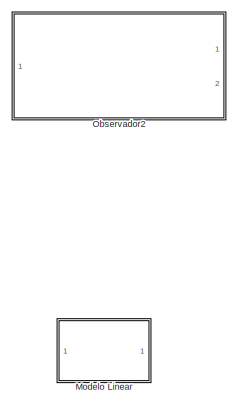
[diagram: root canvas - part 1/13, top right region]
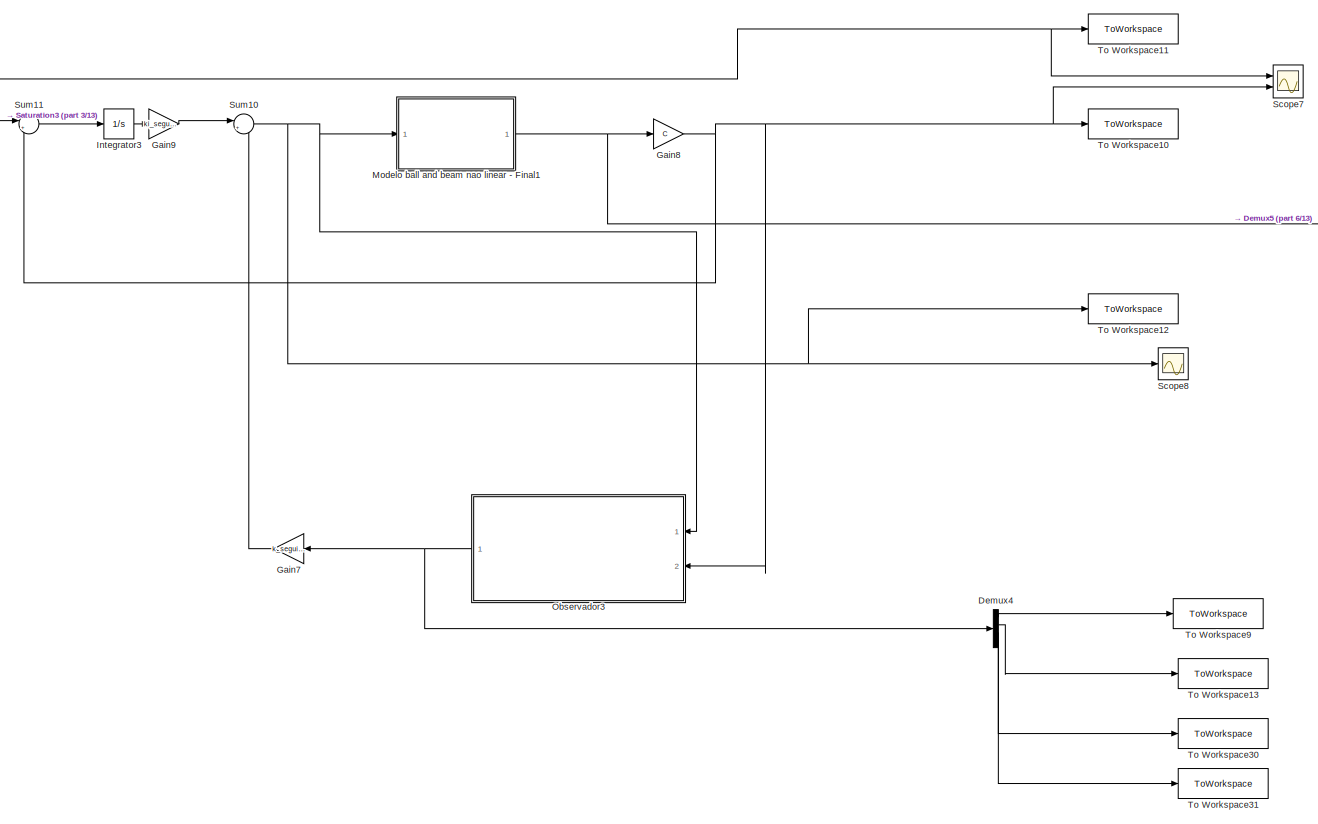
[diagram: root canvas - part 2/13, top center region]
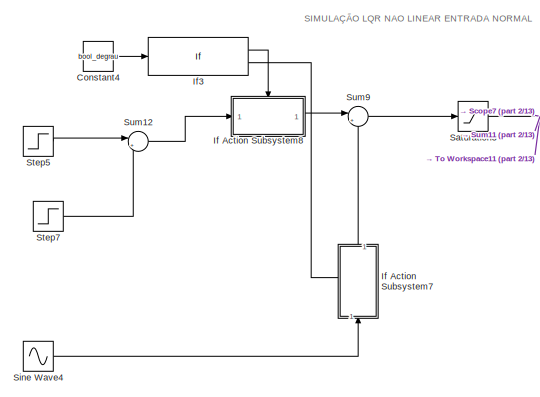
[diagram: root canvas - part 3/13, top center region]
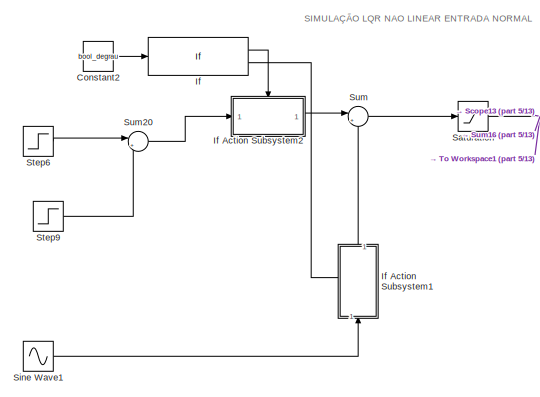
[diagram: root canvas - part 4/13, top left region]
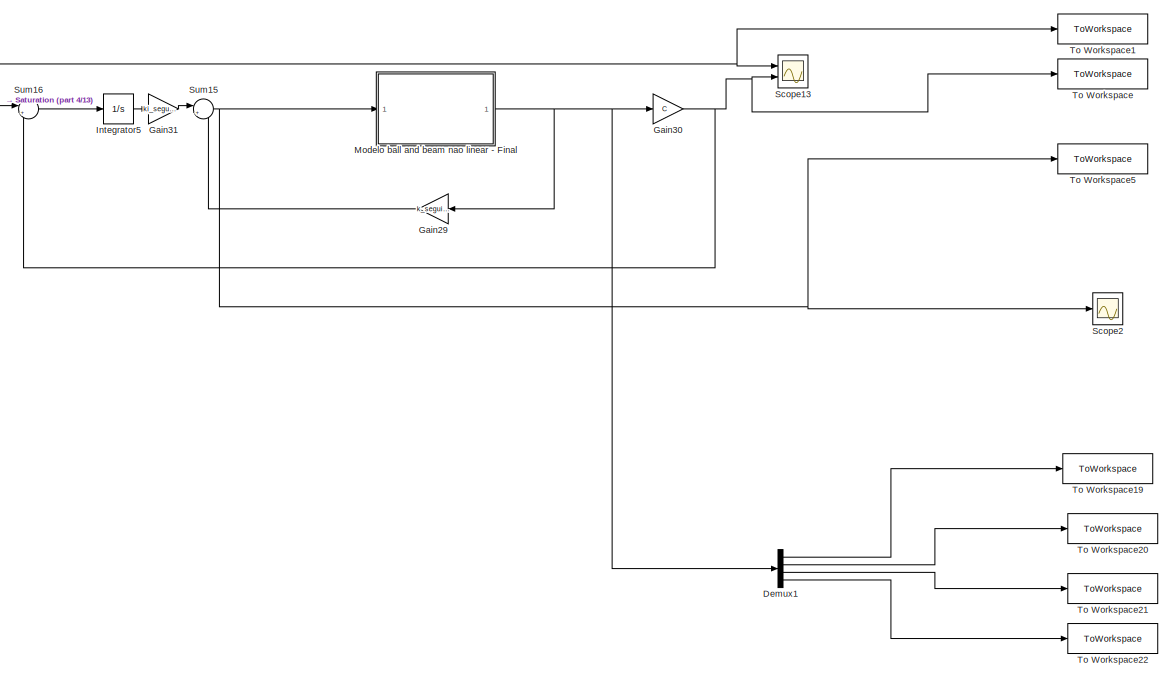
[diagram: root canvas - part 5/13, top left region]
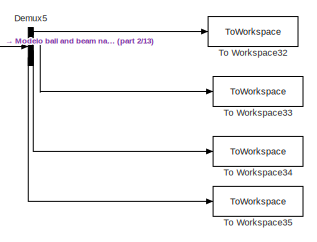
[diagram: root canvas - part 6/13, top right region]
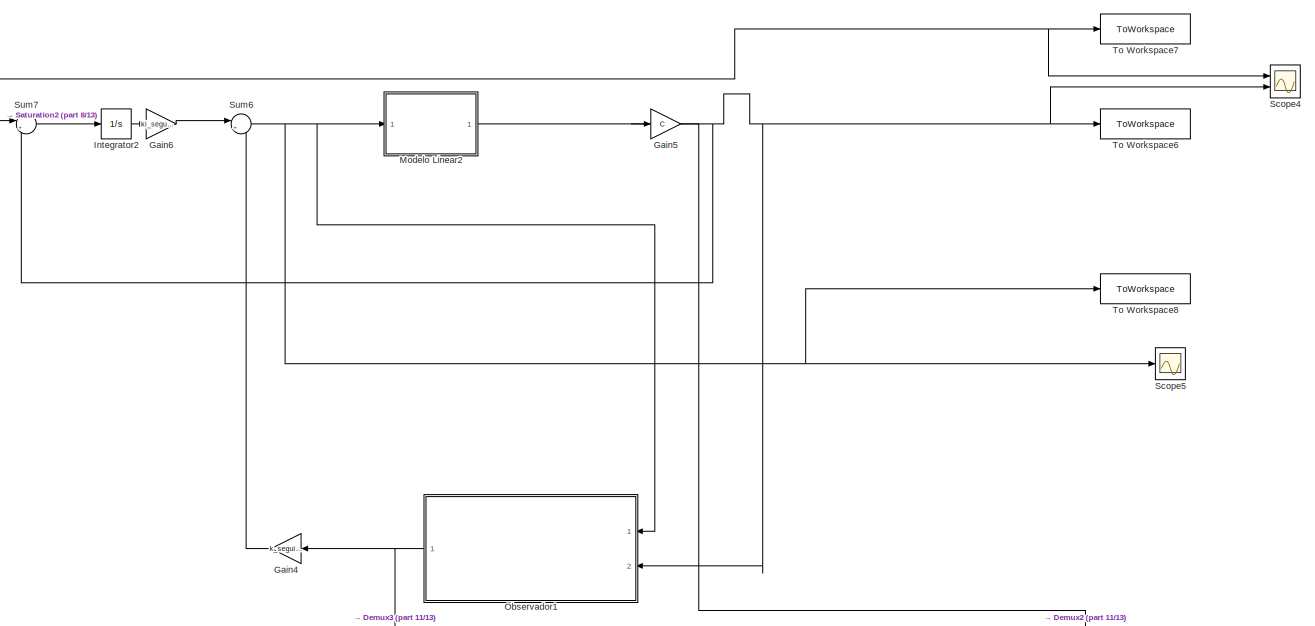
[diagram: root canvas - part 7/13, central region]
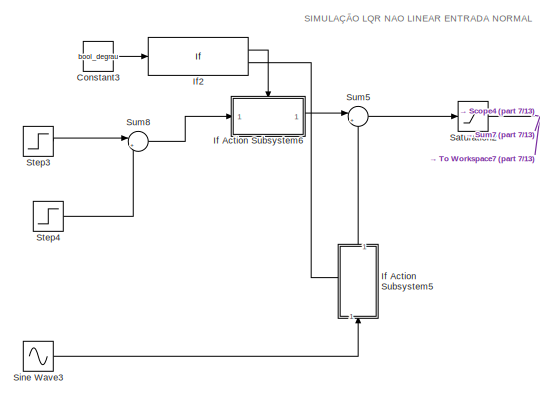
[diagram: root canvas - part 8/13, central region]
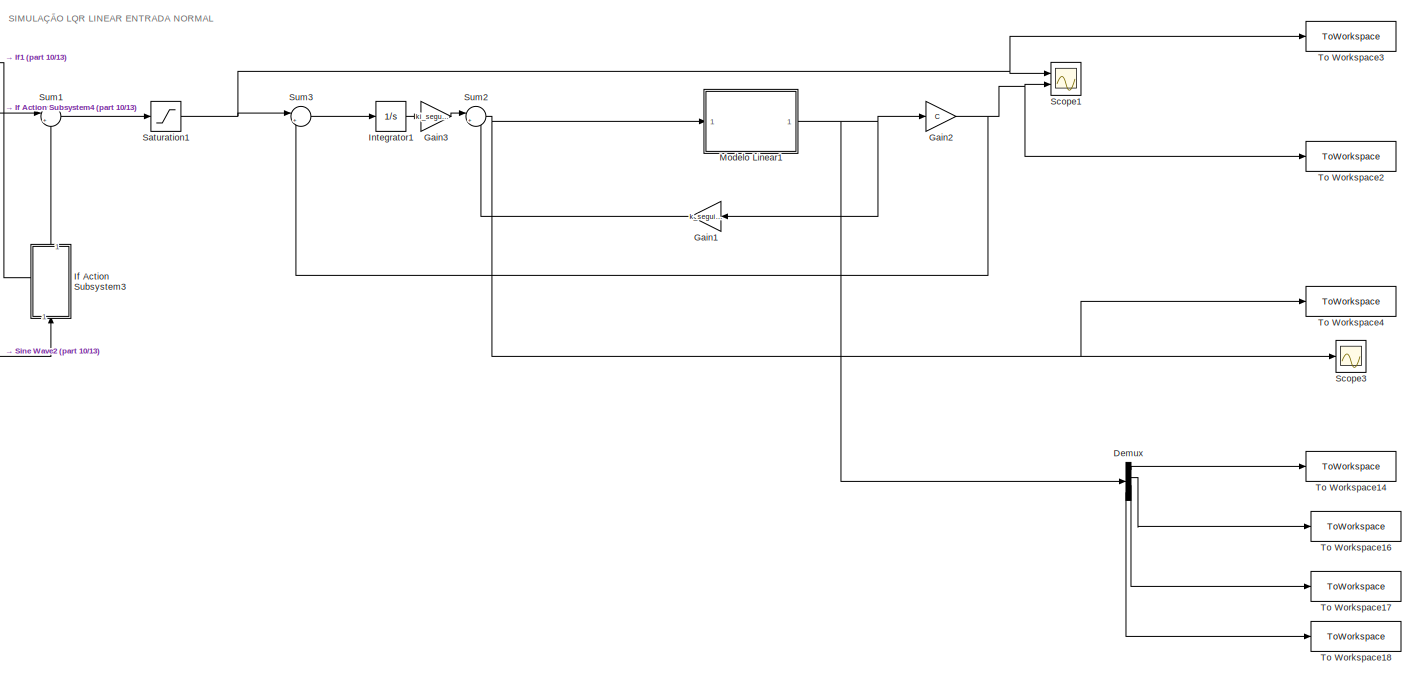
[diagram: root canvas - part 9/13, middle left region]
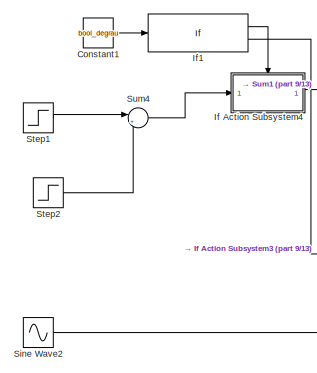
[diagram: root canvas - part 10/13, middle left region]
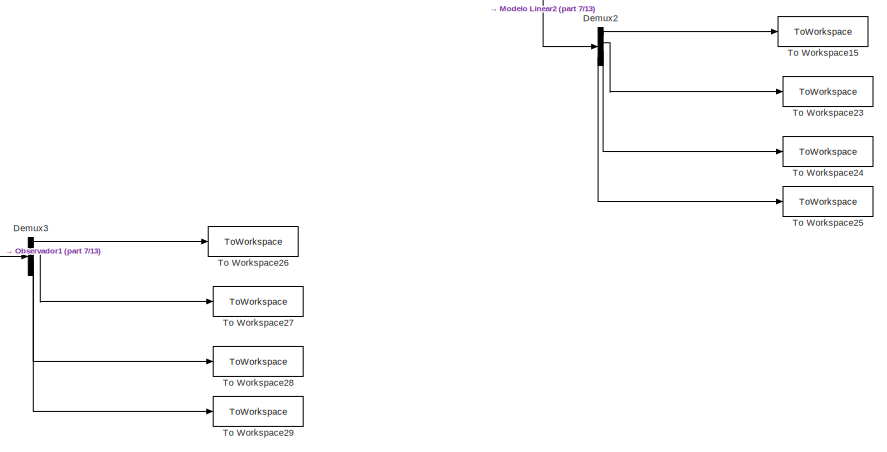
[diagram: root canvas - part 11/13, bottom center region]
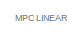
[diagram: root canvas - part 12/13, bottom left region]
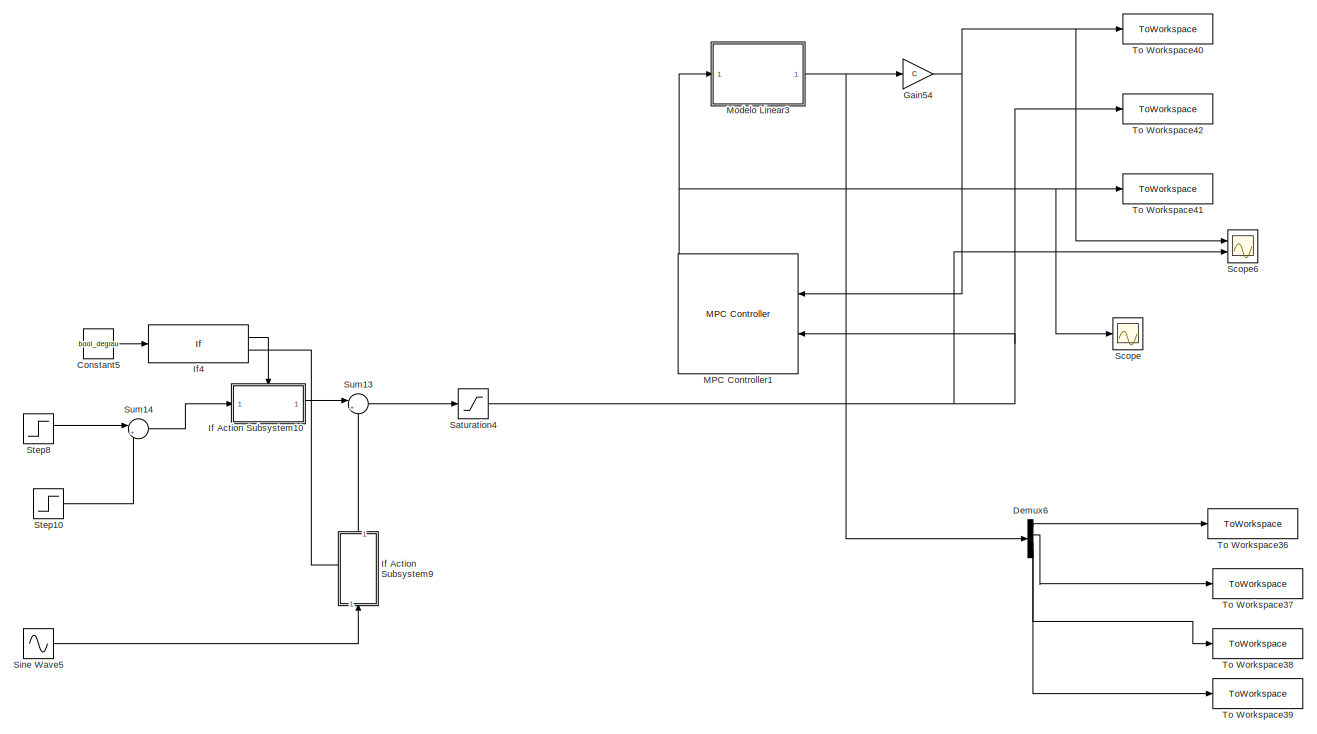
[diagram: root canvas - part 13/13, bottom left region]
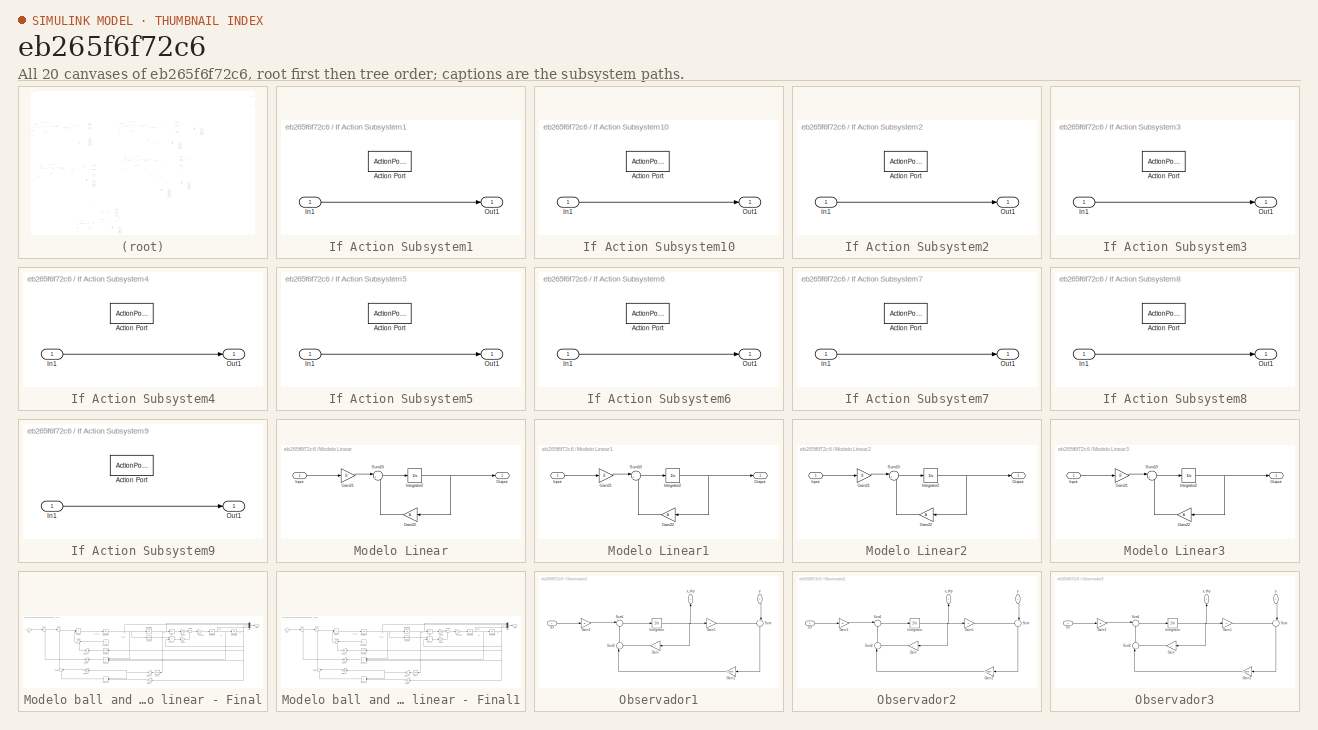
[diagram: thumbnail index - all 20 canvases of the model, root first then tree order]
MODEL slx_eb265f6f72c6
KIND model
CONFIG AbsTol = auto
CONFIG EnableMultiTasking = off
CONFIG FixedStep = auto
CONFIG MaxStep = auto
CONFIG MinStep = auto
CONFIG RelTol = 1e-3
CONFIG SampleTimeConstraint = Unconstrained
CONFIG SolverName = VariableStepAuto
CONFIG StartTime = 0
CONFIG StopTime = 200
BLOCK [Constant] Constant1
  Value = bool_degrau
BLOCK [Constant] Constant2
  Value = bool_degrau
BLOCK [Constant] Constant3
  Value = bool_degrau
BLOCK [Constant] Constant4
  Value = bool_degrau
BLOCK [Constant] Constant5
  Value = bool_degrau
BLOCK [Demux] Demux
  Ports = [1, 4]
BLOCK [Demux] Demux1
  Ports = [1, 4]
BLOCK [Demux] Demux2
  Ports = [1, 4]
BLOCK [Demux] Demux3
  Ports = [1, 4]
BLOCK [Demux] Demux4
  Ports = [1, 4]
BLOCK [Demux] Demux5
  Ports = [1, 4]
BLOCK [Demux] Demux6
  Ports = [1, 4]
BLOCK [Gain] Gain1
  Gain = k_seguimento_lqr
  Multiplication = Matrix(K*u)
  NameLocation = top
BLOCK [Gain] Gain2
  Gain = C
  Multiplication = Matrix(K*u)
BLOCK [Gain] Gain29
  Gain = k_seguimento
  Multiplication = Matrix(K*u)
  NameLocation = top
BLOCK [Gain] Gain3
  Gain = ki_seguimento_lqr
BLOCK [Gain] Gain30
  Gain = C
  Multiplication = Matrix(K*u)
BLOCK [Gain] Gain31
  Gain = ki_seguimento
BLOCK [Gain] Gain4
  Gain = k_seguimento_lqr
  Multiplication = Matrix(K*u)
  NameLocation = top
BLOCK [Gain] Gain5
  Gain = C
  Multiplication = Matrix(K*u)
BLOCK [Gain] Gain54
  Gain = C
  Multiplication = Matrix(K*u)
BLOCK [Gain] Gain6
  Gain = ki_seguimento_lqr
BLOCK [Gain] Gain7
  Gain = k_seguimento
  Multiplication = Matrix(K*u)
  NameLocation = top
BLOCK [Gain] Gain8
  Gain = C
  Multiplication = Matrix(K*u)
BLOCK [Gain] Gain9
  Gain = ki_seguimento
BLOCK [If] If
  IfExpression = u1 == 1
  Ports = [1, 2]
BLOCK [SubSystem] If Action Subsystem1
  NameLocation = right
  Ports = [1, 1, 0, 0, 0, 0, 0, 1]
  RequestExecContextInheritance = off
  TreatAsAtomicUnit = on
BLOCK [ActionPort] If Action Subsystem1/Action Port
  ActionPortLabel = else
BLOCK [Inport] If Action Subsystem1/In1
BLOCK [Outport] If Action Subsystem1/Out1
BLOCK [SubSystem] If Action Subsystem10
  Ports = [1, 1, 0, 0, 0, 0, 0, 1]
  RequestExecContextInheritance = off
  TreatAsAtomicUnit = on
BLOCK [ActionPort] If Action Subsystem10/Action Port
  ActionPortLabel = if(u1 == 1)
BLOCK [Inport] If Action Subsystem10/In1
BLOCK [Outport] If Action Subsystem10/Out1
BLOCK [SubSystem] If Action Subsystem2
  Ports = [1, 1, 0, 0, 0, 0, 0, 1]
  RequestExecContextInheritance = off
  TreatAsAtomicUnit = on
BLOCK [ActionPort] If Action Subsystem2/Action Port
  ActionPortLabel = if(u1 == 1)
BLOCK [Inport] If Action Subsystem2/In1
BLOCK [Outport] If Action Subsystem2/Out1
BLOCK [SubSystem] If Action Subsystem3
  NameLocation = right
  Ports = [1, 1, 0, 0, 0, 0, 0, 1]
  RequestExecContextInheritance = off
  TreatAsAtomicUnit = on
BLOCK [ActionPort] If Action Subsystem3/Action Port
  ActionPortLabel = else
BLOCK [Inport] If Action Subsystem3/In1
BLOCK [Outport] If Action Subsystem3/Out1
BLOCK [SubSystem] If Action Subsystem4
  Ports = [1, 1, 0, 0, 0, 0, 0, 1]
  RequestExecContextInheritance = off
  TreatAsAtomicUnit = on
BLOCK [ActionPort] If Action Subsystem4/Action Port
  ActionPortLabel = if(u1 == 1)
BLOCK [Inport] If Action Subsystem4/In1
BLOCK [Outport] If Action Subsystem4/Out1
BLOCK [SubSystem] If Action Subsystem5
  NameLocation = right
  Ports = [1, 1, 0, 0, 0, 0, 0, 1]
  RequestExecContextInheritance = off
  TreatAsAtomicUnit = on
BLOCK [ActionPort] If Action Subsystem5/Action Port
  ActionPortLabel = else
BLOCK [Inport] If Action Subsystem5/In1
BLOCK [Outport] If Action Subsystem5/Out1
BLOCK [SubSystem] If Action Subsystem6
  Ports = [1, 1, 0, 0, 0, 0, 0, 1]
  RequestExecContextInheritance = off
  TreatAsAtomicUnit = on
BLOCK [ActionPort] If Action Subsystem6/Action Port
  ActionPortLabel = if(u1 == 1)
BLOCK [Inport] If Action Subsystem6/In1
BLOCK [Outport] If Action Subsystem6/Out1
BLOCK [SubSystem] If Action Subsystem7
  NameLocation = right
  Ports = [1, 1, 0, 0, 0, 0, 0, 1]
  RequestExecContextInheritance = off
  TreatAsAtomicUnit = on
BLOCK [ActionPort] If Action Subsystem7/Action Port
  ActionPortLabel = else
BLOCK [Inport] If Action Subsystem7/In1
BLOCK [Outport] If Action Subsystem7/Out1
BLOCK [SubSystem] If Action Subsystem8
  Ports = [1, 1, 0, 0, 0, 0, 0, 1]
  RequestExecContextInheritance = off
  TreatAsAtomicUnit = on
BLOCK [ActionPort] If Action Subsystem8/Action Port
  ActionPortLabel = if(u1 == 1)
BLOCK [Inport] If Action Subsystem8/In1
BLOCK [Outport] If Action Subsystem8/Out1
BLOCK [SubSystem] If Action Subsystem9
  NameLocation = right
  Ports = [1, 1, 0, 0, 0, 0, 0, 1]
  RequestExecContextInheritance = off
  TreatAsAtomicUnit = on
BLOCK [ActionPort] If Action Subsystem9/Action Port
  ActionPortLabel = else
BLOCK [Inport] If Action Subsystem9/In1
BLOCK [Outport] If Action Subsystem9/Out1
BLOCK [If] If1
  IfExpression = u1 == 1
  Ports = [1, 2]
BLOCK [If] If2
  IfExpression = u1 == 1
  Ports = [1, 2]
BLOCK [If] If3
  IfExpression = u1 == 1
  Ports = [1, 2]
BLOCK [If] If4
  IfExpression = u1 == 1
  Ports = [1, 2]
BLOCK [Integrator] Integrator1
  Ports = [1, 1]
BLOCK [Integrator] Integrator2
  Ports = [1, 1]
BLOCK [Integrator] Integrator3
  Ports = [1, 1]
BLOCK [Integrator] Integrator5
  Ports = [1, 1]
BLOCK [Reference] MPC Controller1  REF=mpclib/MPC Controller  (lib defined in mdl_ae329e0e0455)
  NameLocation = top
  Ports = [2, 1]
  SCDEnableBlockLinearizationSpecification = on
  SourceBlock = mpclib/MPC Controller
  SourceProductBaseCode = MP
  SourceType = MPC
BLOCK [SubSystem] Modelo Linear
  Ports = [1, 1]
  RequestExecContextInheritance = off
BLOCK [Gain] Modelo Linear/Gain21
  Gain = B
  Multiplication = Matrix(K*u)
BLOCK [Gain] Modelo Linear/Gain22
  Gain = A
  Multiplication = Matrix(K*u)
  NameLocation = top
BLOCK [Inport] Modelo Linear/Input
BLOCK [Integrator] Modelo Linear/Integrator2
  Ports = [1, 1]
BLOCK [Outport] Modelo Linear/Output
BLOCK [Sum] Modelo Linear/Sum10
  Inputs = |++
  Ports = [2, 1]
BLOCK [SubSystem] Modelo Linear1
  Ports = [1, 1]
  RequestExecContextInheritance = off
BLOCK [Gain] Modelo Linear1/Gain21
  Gain = B
  Multiplication = Matrix(K*u)
BLOCK [Gain] Modelo Linear1/Gain22
  Gain = A
  Multiplication = Matrix(K*u)
  NameLocation = top
BLOCK [Inport] Modelo Linear1/Input
BLOCK [Integrator] Modelo Linear1/Integrator2
  Ports = [1, 1]
BLOCK [Outport] Modelo Linear1/Output
BLOCK [Sum] Modelo Linear1/Sum10
  Inputs = |++
  Ports = [2, 1]
BLOCK [SubSystem] Modelo Linear2
  Ports = [1, 1]
  RequestExecContextInheritance = off
BLOCK [Gain] Modelo Linear2/Gain21
  Gain = B
  Multiplication = Matrix(K*u)
BLOCK [Gain] Modelo Linear2/Gain22
  Gain = A
  Multiplication = Matrix(K*u)
  NameLocation = top
BLOCK [Inport] Modelo Linear2/Input
BLOCK [Integrator] Modelo Linear2/Integrator2
  Ports = [1, 1]
BLOCK [Outport] Modelo Linear2/Output
BLOCK [Sum] Modelo Linear2/Sum10
  Inputs = |++
  Ports = [2, 1]
BLOCK [SubSystem] Modelo Linear3
  Ports = [1, 1]
  RequestExecContextInheritance = off
BLOCK [Gain] Modelo Linear3/Gain21
  Gain = B
  Multiplication = Matrix(K*u)
BLOCK [Gain] Modelo Linear3/Gain22
  Gain = A
  Multiplication = Matrix(K*u)
  NameLocation = top
BLOCK [Inport] Modelo Linear3/Input
BLOCK [Integrator] Modelo Linear3/Integrator2
  Ports = [1, 1]
BLOCK [Outport] Modelo Linear3/Output
BLOCK [Sum] Modelo Linear3/Sum10
  Inputs = |++
  Ports = [2, 1]
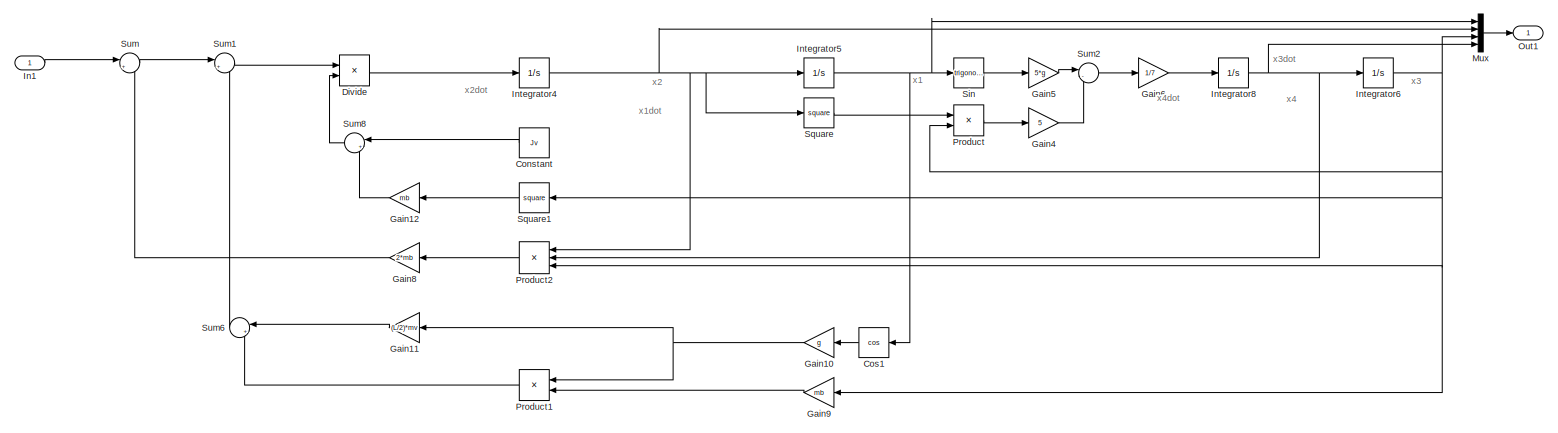
[diagram: Modelo ball and beam nao linear - Final - part 1/1, most of the canvas]
BLOCK [SubSystem] Modelo ball and beam nao linear - Final
  Ports = [1, 1]
  RequestExecContextInheritance = off
BLOCK [Constant] Modelo ball and beam nao linear - Final/Constant
  NameLocation = top
  Value = Jv
BLOCK [Trigonometry] Modelo ball and beam nao linear - Final/Cos1
  NameLocation = top
  Operator = cos
  Ports = [1, 1]
BLOCK [Product] Modelo ball and beam nao linear - Final/Divide
  Inputs = */
  Ports = [2, 1]
BLOCK [Gain] Modelo ball and beam nao linear - Final/Gain10
  Gain = g
  NameLocation = top
BLOCK [Gain] Modelo ball and beam nao linear - Final/Gain11
  Gain = (L/2)*mv
  NameLocation = top
BLOCK [Gain] Modelo ball and beam nao linear - Final/Gain12
  Gain = mb
  NameLocation = top
BLOCK [Gain] Modelo ball and beam nao linear - Final/Gain4
  Gain = 5
BLOCK [Gain] Modelo ball and beam nao linear - Final/Gain5
  Gain = 5*g
BLOCK [Gain] Modelo ball and beam nao linear - Final/Gain6
  Gain = 1/7
BLOCK [Gain] Modelo ball and beam nao linear - Final/Gain8
  Gain = 2*mb
  NameLocation = top
BLOCK [Gain] Modelo ball and beam nao linear - Final/Gain9
  Gain = mb
  NameLocation = top
BLOCK [Inport] Modelo ball and beam nao linear - Final/In1
BLOCK [Integrator] Modelo ball and beam nao linear - Final/Integrator4
  Ports = [1, 1]
BLOCK [Integrator] Modelo ball and beam nao linear - Final/Integrator5
  Ports = [1, 1]
BLOCK [Integrator] Modelo ball and beam nao linear - Final/Integrator6
  Ports = [1, 1]
BLOCK [Integrator] Modelo ball and beam nao linear - Final/Integrator8
  Ports = [1, 1]
BLOCK [Mux] Modelo ball and beam nao linear - Final/Mux
  DisplayOption = bar
  Ports = [4, 1]
BLOCK [Outport] Modelo ball and beam nao linear - Final/Out1
BLOCK [Product] Modelo ball and beam nao linear - Final/Product
  Ports = [2, 1]
BLOCK [Product] Modelo ball and beam nao linear - Final/Product1
  NameLocation = top
  Ports = [2, 1]
BLOCK [Product] Modelo ball and beam nao linear - Final/Product2
  Inputs = 3
  NameLocation = top
  Ports = [3, 1]
BLOCK [Trigonometry] Modelo ball and beam nao linear - Final/Sin
  Ports = [1, 1]
BLOCK [Math] Modelo ball and beam nao linear - Final/Square
  Operator = square
  Ports = [1, 1]
BLOCK [Math] Modelo ball and beam nao linear - Final/Square1
  NameLocation = top
  Operator = square
  Ports = [1, 1]
BLOCK [Sum] Modelo ball and beam nao linear - Final/Sum
  Inputs = |+-
  Ports = [2, 1]
BLOCK [Sum] Modelo ball and beam nao linear - Final/Sum1
  Inputs = |+-
  Ports = [2, 1]
BLOCK [Sum] Modelo ball and beam nao linear - Final/Sum2
  Inputs = |-+
  NameLocation = top
  Ports = [2, 1]
BLOCK [Sum] Modelo ball and beam nao linear - Final/Sum6
  Inputs = |++
  NameLocation = top
  Ports = [2, 1]
BLOCK [Sum] Modelo ball and beam nao linear - Final/Sum8
  Inputs = |++
  NameLocation = top
  Ports = [2, 1]
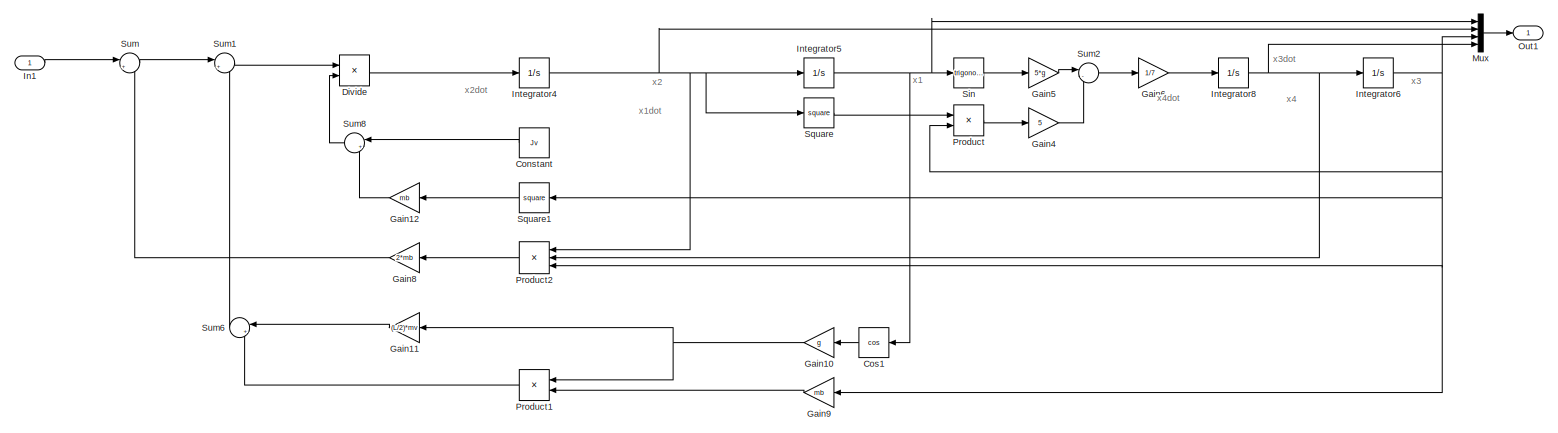
[diagram: Modelo ball and beam nao linear - Final1 - part 1/1, most of the canvas]
BLOCK [SubSystem] Modelo ball and beam nao linear - Final1
  Ports = [1, 1]
  RequestExecContextInheritance = off
BLOCK [Constant] Modelo ball and beam nao linear - Final1/Constant
  NameLocation = top
  Value = Jv
BLOCK [Trigonometry] Modelo ball and beam nao linear - Final1/Cos1
  NameLocation = top
  Operator = cos
  Ports = [1, 1]
BLOCK [Product] Modelo ball and beam nao linear - Final1/Divide
  Inputs = */
  Ports = [2, 1]
BLOCK [Gain] Modelo ball and beam nao linear - Final1/Gain10
  Gain = g
  NameLocation = top
BLOCK [Gain] Modelo ball and beam nao linear - Final1/Gain11
  Gain = (L/2)*mv
  NameLocation = top
BLOCK [Gain] Modelo ball and beam nao linear - Final1/Gain12
  Gain = mb
  NameLocation = top
BLOCK [Gain] Modelo ball and beam nao linear - Final1/Gain4
  Gain = 5
BLOCK [Gain] Modelo ball and beam nao linear - Final1/Gain5
  Gain = 5*g
BLOCK [Gain] Modelo ball and beam nao linear - Final1/Gain6
  Gain = 1/7
BLOCK [Gain] Modelo ball and beam nao linear - Final1/Gain8
  Gain = 2*mb
  NameLocation = top
BLOCK [Gain] Modelo ball and beam nao linear - Final1/Gain9
  Gain = mb
  NameLocation = top
BLOCK [Inport] Modelo ball and beam nao linear - Final1/In1
BLOCK [Integrator] Modelo ball and beam nao linear - Final1/Integrator4
  Ports = [1, 1]
BLOCK [Integrator] Modelo ball and beam nao linear - Final1/Integrator5
  Ports = [1, 1]
BLOCK [Integrator] Modelo ball and beam nao linear - Final1/Integrator6
  Ports = [1, 1]
BLOCK [Integrator] Modelo ball and beam nao linear - Final1/Integrator8
  Ports = [1, 1]
BLOCK [Mux] Modelo ball and beam nao linear - Final1/Mux
  DisplayOption = bar
  Ports = [4, 1]
BLOCK [Outport] Modelo ball and beam nao linear - Final1/Out1
BLOCK [Product] Modelo ball and beam nao linear - Final1/Product
  Ports = [2, 1]
BLOCK [Product] Modelo ball and beam nao linear - Final1/Product1
  NameLocation = top
  Ports = [2, 1]
BLOCK [Product] Modelo ball and beam nao linear - Final1/Product2
  Inputs = 3
  NameLocation = top
  Ports = [3, 1]
BLOCK [Trigonometry] Modelo ball and beam nao linear - Final1/Sin
  Ports = [1, 1]
BLOCK [Math] Modelo ball and beam nao linear - Final1/Square
  Operator = square
  Ports = [1, 1]
BLOCK [Math] Modelo ball and beam nao linear - Final1/Square1
  NameLocation = top
  Operator = square
  Ports = [1, 1]
BLOCK [Sum] Modelo ball and beam nao linear - Final1/Sum
  Inputs = |+-
  Ports = [2, 1]
BLOCK [Sum] Modelo ball and beam nao linear - Final1/Sum1
  Inputs = |+-
  Ports = [2, 1]
BLOCK [Sum] Modelo ball and beam nao linear - Final1/Sum2
  Inputs = |-+
  NameLocation = top
  Ports = [2, 1]
BLOCK [Sum] Modelo ball and beam nao linear - Final1/Sum6
  Inputs = |++
  NameLocation = top
  Ports = [2, 1]
BLOCK [Sum] Modelo ball and beam nao linear - Final1/Sum8
  Inputs = |++
  NameLocation = top
  Ports = [2, 1]
BLOCK [SubSystem] Observador1
  NameLocation = top
  Ports = [2, 1]
  RequestExecContextInheritance = off
BLOCK [Gain] Observador1/Gain
  Gain = A
  Multiplication = Matrix(K*u)
  NameLocation = top
BLOCK [Gain] Observador1/Gain1
  Gain = C
  Multiplication = Matrix(K*u)
BLOCK [Gain] Observador1/Gain2
  Gain = L_observador
  Multiplication = Matrix(K*u)
  NameLocation = top
BLOCK [Gain] Observador1/Gain3
  Gain = B
  Multiplication = Matrix(K*u)
BLOCK [Integrator] Observador1/Integrator
  Ports = [1, 1]
BLOCK [Sum] Observador1/Sum
  Inputs = -+|
  NameLocation = left
  Ports = [2, 1]
BLOCK [Sum] Observador1/Sum1
  Inputs = |++
  Ports = [2, 1]
BLOCK [Sum] Observador1/Sum2
  Inputs = |++
  NameLocation = right
  Ports = [2, 1]
BLOCK [Inport] Observador1/ref
BLOCK [Outport] Observador1/x_chp
  NameLocation = right
BLOCK [Inport] Observador1/y
  NameLocation = left
  Port = 2
BLOCK [SubSystem] Observador2
  NameLocation = top
  Ports = [2, 1]
  RequestExecContextInheritance = off
BLOCK [Gain] Observador2/Gain
  Gain = A
  Multiplication = Matrix(K*u)
  NameLocation = top
BLOCK [Gain] Observador2/Gain1
  Gain = C
  Multiplication = Matrix(K*u)
BLOCK [Gain] Observador2/Gain2
  Gain = L_observador
  Multiplication = Matrix(K*u)
  NameLocation = top
BLOCK [Gain] Observador2/Gain3
  Gain = B
  Multiplication = Matrix(K*u)
BLOCK [Integrator] Observador2/Integrator
  Ports = [1, 1]
BLOCK [Sum] Observador2/Sum
  Inputs = -+|
  NameLocation = left
  Ports = [2, 1]
BLOCK [Sum] Observador2/Sum1
  Inputs = |++
  Ports = [2, 1]
BLOCK [Sum] Observador2/Sum2
  Inputs = |++
  NameLocation = right
  Ports = [2, 1]
BLOCK [Inport] Observador2/ref
BLOCK [Outport] Observador2/x_chp
  NameLocation = right
BLOCK [Inport] Observador2/y
  NameLocation = left
  Port = 2
BLOCK [SubSystem] Observador3
  NameLocation = top
  Ports = [2, 1]
  RequestExecContextInheritance = off
BLOCK [Gain] Observador3/Gain
  Gain = A
  Multiplication = Matrix(K*u)
  NameLocation = top
BLOCK [Gain] Observador3/Gain1
  Gain = C
  Multiplication = Matrix(K*u)
BLOCK [Gain] Observador3/Gain2
  Gain = L_observador
  Multiplication = Matrix(K*u)
  NameLocation = top
BLOCK [Gain] Observador3/Gain3
  Gain = B
  Multiplication = Matrix(K*u)
BLOCK [Integrator] Observador3/Integrator
  Ports = [1, 1]
BLOCK [Sum] Observador3/Sum
  Inputs = -+|
  NameLocation = left
  Ports = [2, 1]
BLOCK [Sum] Observador3/Sum1
  Inputs = |++
  Ports = [2, 1]
BLOCK [Sum] Observador3/Sum2
  Inputs = |++
  NameLocation = right
  Ports = [2, 1]
BLOCK [Inport] Observador3/ref
BLOCK [Outport] Observador3/x_chp
  NameLocation = right
BLOCK [Inport] Observador3/y
  NameLocation = left
  Port = 2
BLOCK [Saturate] Saturation
  LowerLimit = -L/2
  UpperLimit = L/2
BLOCK [Saturate] Saturation1
  LowerLimit = -L/2
  UpperLimit = L/2
BLOCK [Saturate] Saturation2
  LowerLimit = -L/2
  UpperLimit = L/2
BLOCK [Saturate] Saturation3
  LowerLimit = -L/2
  UpperLimit = L/2
BLOCK [Saturate] Saturation4
  LowerLimit = -L/2
  UpperLimit = L/2
BLOCK [Scope] Scope
  Floating = off
  NumInputPorts = 1
  Ports = [1]
  ScopeSpecificationString = Simulink.scopes.TimeScopeBlockCfg('CurrentConfiguration', extmgr.ConfigurationSet(extmgr.Configuration('Core','General UI',true),extmgr.Configuration('Core','Source UI',true),extmgr.Configuration('Sources','WiredSimulink',true,'DataLoggingVariableName','ScopeData1'),extmgr.Configuration('Visuals','Time Domain',true,'SerializedDisplays',{struct('MinYLimReal','-14.6811','MaxYLimReal','15.60833','YLa...<+1407ch>
BLOCK [Scope] Scope1
  Floating = off
  NumInputPorts = 2
  Ports = [2]
  ScopeSpecificationString = Simulink.scopes.TimeScopeBlockCfg('CurrentConfiguration', extmgr.ConfigurationSet(extmgr.Configuration('Core','General UI',true,'FigureColor',[1 1 1]),extmgr.Configuration('Core','Source UI',true),extmgr.Configuration('Sources','WiredSimulink',true,'DataLoggingVariableName','ScopeData1'),extmgr.Configuration('Visuals','Time Domain',true,'SerializedDisplays',{struct('MinYLimReal','-0.26562','MaxYLi...<+1813ch>
BLOCK [Scope] Scope13
  Floating = off
  NumInputPorts = 2
  Ports = [2]
  ScopeSpecificationString = Simulink.scopes.TimeScopeBlockCfg('CurrentConfiguration', extmgr.ConfigurationSet(extmgr.Configuration('Core','General UI',true,'FigureColor',[1 1 1]),extmgr.Configuration('Core','Source UI',true),extmgr.Configuration('Sources','WiredSimulink',true),extmgr.Configuration('Visuals','Time Domain',true,'SerializedDisplays',{struct('MinYLimReal','-0.26578','MaxYLimReal','0.26607','YLabelReal','','MinYL...<+1774ch>
BLOCK [Scope] Scope2
  Floating = off
  NumInputPorts = 1
  Ports = [1]
  ScopeSpecificationString = Simulink.scopes.TimeScopeBlockCfg('CurrentConfiguration', extmgr.ConfigurationSet(extmgr.Configuration('Core','General UI',true),extmgr.Configuration('Core','Source UI',true),extmgr.Configuration('Sources','WiredSimulink',true,'DataLoggingVariableName','ScopeData2'),extmgr.Configuration('Visuals','Time Domain',true,'SerializedDisplays',{struct('MinYLimReal','-0.18647','MaxYLimReal','1.67826','YLab...<+1389ch>
BLOCK [Scope] Scope3
  Floating = off
  NumInputPorts = 1
  Ports = [1]
  ScopeSpecificationString = Simulink.scopes.TimeScopeBlockCfg('CurrentConfiguration', extmgr.ConfigurationSet(extmgr.Configuration('Core','General UI',true),extmgr.Configuration('Core','Source UI',true),extmgr.Configuration('Sources','WiredSimulink',true,'DataLoggingVariableName','ScopeData3'),extmgr.Configuration('Visuals','Time Domain',true,'SerializedDisplays',{struct('MinYLimReal','-2.72612','MaxYLimReal','2.77983','YLab...<+1392ch>
BLOCK [Scope] Scope4
  Floating = off
  NumInputPorts = 2
  Ports = [2]
  ScopeSpecificationString = Simulink.scopes.TimeScopeBlockCfg('CurrentConfiguration', extmgr.ConfigurationSet(extmgr.Configuration('Core','General UI',true,'FigureColor',[1 1 1]),extmgr.Configuration('Core','Source UI',true),extmgr.Configuration('Sources','WiredSimulink',true,'DataLoggingVariableName','ScopeData4'),extmgr.Configuration('Visuals','Time Domain',true,'SerializedDisplays',{struct('MinYLimReal','-0.26562','MaxYLi...<+1813ch>
BLOCK [Scope] Scope5
  Floating = off
  NumInputPorts = 1
  Ports = [1]
  ScopeSpecificationString = Simulink.scopes.TimeScopeBlockCfg('CurrentConfiguration', extmgr.ConfigurationSet(extmgr.Configuration('Core','General UI',true),extmgr.Configuration('Core','Source UI',true),extmgr.Configuration('Sources','WiredSimulink',true,'DataLoggingVariableName','ScopeData5'),extmgr.Configuration('Visuals','Time Domain',true,'SerializedDisplays',{struct('MinYLimReal','-2.72612','MaxYLimReal','2.77983','YLab...<+1392ch>
BLOCK [Scope] Scope6
  Floating = off
  NumInputPorts = 2
  Ports = [2]
  ScopeSpecificationString = Simulink.scopes.TimeScopeBlockCfg('CurrentConfiguration', extmgr.ConfigurationSet(extmgr.Configuration('Core','General UI',true),extmgr.Configuration('Core','Source UI',true),extmgr.Configuration('Sources','WiredSimulink',true,'DataLoggingVariableName','ScopeData2'),extmgr.Configuration('Visuals','Time Domain',true),extmgr.Configuration('Tools','Plot Navigation',true),extmgr.Configuration('Tools',...<+40ch>
BLOCK [Scope] Scope7
  Floating = off
  NumInputPorts = 2
  Ports = [2]
  ScopeSpecificationString = Simulink.scopes.TimeScopeBlockCfg('CurrentConfiguration', extmgr.ConfigurationSet(extmgr.Configuration('Core','General UI',true,'FigureColor',[1 1 1]),extmgr.Configuration('Core','Source UI',true),extmgr.Configuration('Sources','WiredSimulink',true,'DataLoggingVariableName','ScopeData8'),extmgr.Configuration('Visuals','Time Domain',true,'SerializedDisplays',{struct('MinYLimReal','-199805.9251','Ma...<+1853ch>
BLOCK [Scope] Scope8
  Floating = off
  NumInputPorts = 1
  Ports = [1]
  ScopeSpecificationString = Simulink.scopes.TimeScopeBlockCfg('CurrentConfiguration', extmgr.ConfigurationSet(extmgr.Configuration('Core','General UI',true),extmgr.Configuration('Core','Source UI',true),extmgr.Configuration('Sources','WiredSimulink',true,'DataLoggingVariableName','ScopeData9'),extmgr.Configuration('Visuals','Time Domain',true,'SerializedDisplays',{struct('MinYLimReal','-3203634.33928','MaxYLimReal','28832709...<+1443ch>
BLOCK [Sin] Sine Wave1
  Amplitude = amplitude_entrada
  Frequency = 0.1
  Ports = [0, 1]
  SampleTime = 0
BLOCK [Sin] Sine Wave2
  Amplitude = amplitude_entrada
  Frequency = 0.1
  Ports = [0, 1]
  SampleTime = 0
BLOCK [Sin] Sine Wave3
  Amplitude = amplitude_entrada
  Frequency = 0.1
  Ports = [0, 1]
  SampleTime = 0
BLOCK [Sin] Sine Wave4
  Amplitude = amplitude_entrada
  Frequency = 0.1
  Ports = [0, 1]
  SampleTime = 0
BLOCK [Sin] Sine Wave5
  Amplitude = amplitude_entrada
  Frequency = 0.1
  Ports = [0, 1]
  SampleTime = 0
BLOCK [Step] Step1
  After = amplitude_entrada
  SampleTime = 0
BLOCK [Step] Step10
  After = -2*amplitude_entrada
  SampleTime = 0
  Time = 100
BLOCK [Step] Step2
  After = -2*amplitude_entrada
  SampleTime = 0
  Time = 100
BLOCK [Step] Step3
  After = amplitude_entrada
  SampleTime = 0
BLOCK [Step] Step4
  After = -2*amplitude_entrada
  SampleTime = 0
  Time = 100
BLOCK [Step] Step5
  After = amplitude_entrada
  SampleTime = 0
BLOCK [Step] Step6
  After = amplitude_entrada
  SampleTime = 0
BLOCK [Step] Step7
  After = -2*amplitude_entrada
  SampleTime = 0
  Time = 100
BLOCK [Step] Step8
  After = amplitude_entrada
  SampleTime = 0
BLOCK [Step] Step9
  After = -2*amplitude_entrada
  SampleTime = 0
  Time = 100
BLOCK [Sum] Sum
  Inputs = |++
  Ports = [2, 1]
BLOCK [Sum] Sum1
  Inputs = |++
  Ports = [2, 1]
BLOCK [Sum] Sum10
  Inputs = |+-
  Ports = [2, 1]
BLOCK [Sum] Sum11
  Inputs = |+-
  Ports = [2, 1]
BLOCK [Sum] Sum12
  Inputs = |++
  Ports = [2, 1]
BLOCK [Sum] Sum13
  Inputs = |++
  Ports = [2, 1]
BLOCK [Sum] Sum14
  Inputs = |++
  Ports = [2, 1]
BLOCK [Sum] Sum15
  Inputs = |+-
  Ports = [2, 1]
BLOCK [Sum] Sum16
  Inputs = |+-
  Ports = [2, 1]
BLOCK [Sum] Sum2
  Inputs = |+-
  Ports = [2, 1]
BLOCK [Sum] Sum20
  Inputs = |++
  Ports = [2, 1]
BLOCK [Sum] Sum3
  Inputs = |+-
  Ports = [2, 1]
BLOCK [Sum] Sum4
  Inputs = |++
  Ports = [2, 1]
BLOCK [Sum] Sum5
  Inputs = |++
  Ports = [2, 1]
BLOCK [Sum] Sum6
  Inputs = |+-
  Ports = [2, 1]
BLOCK [Sum] Sum7
  Inputs = |+-
  Ports = [2, 1]
BLOCK [Sum] Sum8
  Inputs = |++
  Ports = [2, 1]
BLOCK [Sum] Sum9
  Inputs = |++
  Ports = [2, 1]
BLOCK [ToWorkspace] To Workspace
  FixptAsFi = on
  MaxDataPoints = inf
  Ports = [1]
  SampleTime = -1
  SaveFormat = Timeseries
  VariableName = y_output_nao_linear
BLOCK [ToWorkspace] To Workspace1
  FixptAsFi = on
  MaxDataPoints = inf
  Ports = [1]
  SampleTime = -1
  SaveFormat = Timeseries
  VariableName = u_output_nao_linear
BLOCK [ToWorkspace] To Workspace10
  FixptAsFi = on
  MaxDataPoints = inf
  Ports = [1]
  SampleTime = -1
  SaveFormat = Timeseries
  VariableName = y_output_nao_linear_observador
BLOCK [ToWorkspace] To Workspace11
  FixptAsFi = on
  MaxDataPoints = inf
  Ports = [1]
  SampleTime = -1
  SaveFormat = Timeseries
  VariableName = u_output_nao_linear_observador
BLOCK [ToWorkspace] To Workspace12
  FixptAsFi = on
  MaxDataPoints = inf
  Ports = [1]
  SampleTime = -1
  SaveFormat = Timeseries
  VariableName = acao_controle_nao_linear_observador
BLOCK [ToWorkspace] To Workspace13
  FixptAsFi = on
  MaxDataPoints = inf
  Ports = [1]
  SampleTime = -1
  SaveFormat = Timeseries
  VariableName = estados_nao_linear_estimados_observador2
BLOCK [ToWorkspace] To Workspace14
  FixptAsFi = on
  MaxDataPoints = inf
  Ports = [1]
  SampleTime = -1
  SaveFormat = Timeseries
  VariableName = estados_linear1
BLOCK [ToWorkspace] To Workspace15
  FixptAsFi = on
  MaxDataPoints = inf
  Ports = [1]
  SampleTime = -1
  SaveFormat = Timeseries
  VariableName = estados_linear_observador1
BLOCK [ToWorkspace] To Workspace16
  FixptAsFi = on
  MaxDataPoints = inf
  Ports = [1]
  SampleTime = -1
  SaveFormat = Timeseries
  VariableName = estados_linear2
BLOCK [ToWorkspace] To Workspace17
  FixptAsFi = on
  MaxDataPoints = inf
  Ports = [1]
  SampleTime = -1
  SaveFormat = Timeseries
  VariableName = estados_linear3
BLOCK [ToWorkspace] To Workspace18
  FixptAsFi = on
  MaxDataPoints = inf
  Ports = [1]
  SampleTime = -1
  SaveFormat = Timeseries
  VariableName = estados_linear4
BLOCK [ToWorkspace] To Workspace19
  FixptAsFi = on
  MaxDataPoints = inf
  Ports = [1]
  SampleTime = -1
  SaveFormat = Timeseries
  VariableName = estados_nao_linear1
BLOCK [ToWorkspace] To Workspace2
  FixptAsFi = on
  MaxDataPoints = inf
  Ports = [1]
  SampleTime = -1
  SaveFormat = Timeseries
  VariableName = y_output_linear
BLOCK [ToWorkspace] To Workspace20
  FixptAsFi = on
  MaxDataPoints = inf
  Ports = [1]
  SampleTime = -1
  SaveFormat = Timeseries
  VariableName = estados_nao_linear2
BLOCK [ToWorkspace] To Workspace21
  FixptAsFi = on
  MaxDataPoints = inf
  Ports = [1]
  SampleTime = -1
  SaveFormat = Timeseries
  VariableName = estados_nao_linear3
BLOCK [ToWorkspace] To Workspace22
  FixptAsFi = on
  MaxDataPoints = inf
  Ports = [1]
  SampleTime = -1
  SaveFormat = Timeseries
  VariableName = estados_nao_linear4
BLOCK [ToWorkspace] To Workspace23
  FixptAsFi = on
  MaxDataPoints = inf
  Ports = [1]
  SampleTime = -1
  SaveFormat = Timeseries
  VariableName = estados_linear_observador2
BLOCK [ToWorkspace] To Workspace24
  FixptAsFi = on
  MaxDataPoints = inf
  Ports = [1]
  SampleTime = -1
  SaveFormat = Timeseries
  VariableName = estados_linear_observador3
BLOCK [ToWorkspace] To Workspace25
  FixptAsFi = on
  MaxDataPoints = inf
  Ports = [1]
  SampleTime = -1
  SaveFormat = Timeseries
  VariableName = estados_linear_observador4
BLOCK [ToWorkspace] To Workspace26
  FixptAsFi = on
  MaxDataPoints = inf
  Ports = [1]
  SampleTime = -1
  SaveFormat = Timeseries
  VariableName = estados_linear_estimados_observador1
BLOCK [ToWorkspace] To Workspace27
  FixptAsFi = on
  MaxDataPoints = inf
  Ports = [1]
  SampleTime = -1
  SaveFormat = Timeseries
  VariableName = estados_linear_estimados_observador2
BLOCK [ToWorkspace] To Workspace28
  FixptAsFi = on
  MaxDataPoints = inf
  Ports = [1]
  SampleTime = -1
  SaveFormat = Timeseries
  VariableName = estados_linear_estimados_observador3
BLOCK [ToWorkspace] To Workspace29
  FixptAsFi = on
  MaxDataPoints = inf
  Ports = [1]
  SampleTime = -1
  SaveFormat = Timeseries
  VariableName = estados_linear_estimados_observador4
BLOCK [ToWorkspace] To Workspace3
  FixptAsFi = on
  MaxDataPoints = inf
  Ports = [1]
  SampleTime = -1
  SaveFormat = Timeseries
  VariableName = u_output_linear
BLOCK [ToWorkspace] To Workspace30
  FixptAsFi = on
  MaxDataPoints = inf
  Ports = [1]
  SampleTime = -1
  SaveFormat = Timeseries
  VariableName = estados_nao_linear_estimados_observador3
BLOCK [ToWorkspace] To Workspace31
  FixptAsFi = on
  MaxDataPoints = inf
  Ports = [1]
  SampleTime = -1
  SaveFormat = Timeseries
  VariableName = estados_nao_linear_estimados_observador4
BLOCK [ToWorkspace] To Workspace32
  FixptAsFi = on
  MaxDataPoints = inf
  Ports = [1]
  SampleTime = -1
  SaveFormat = Timeseries
  VariableName = estados_nao_linear_observador1
BLOCK [ToWorkspace] To Workspace33
  FixptAsFi = on
  MaxDataPoints = inf
  Ports = [1]
  SampleTime = -1
  SaveFormat = Timeseries
  VariableName = estados_nao_linear_observador2
BLOCK [ToWorkspace] To Workspace34
  FixptAsFi = on
  MaxDataPoints = inf
  Ports = [1]
  SampleTime = -1
  SaveFormat = Timeseries
  VariableName = estados_nao_linear_observador3
BLOCK [ToWorkspace] To Workspace35
  FixptAsFi = on
  MaxDataPoints = inf
  Ports = [1]
  SampleTime = -1
  SaveFormat = Timeseries
  VariableName = estados_nao_linear_observador4
BLOCK [ToWorkspace] To Workspace36
  FixptAsFi = on
  MaxDataPoints = inf
  Ports = [1]
  SampleTime = -1
  SaveFormat = Timeseries
  VariableName = estados_mpc_linear1
BLOCK [ToWorkspace] To Workspace37
  FixptAsFi = on
  MaxDataPoints = inf
  Ports = [1]
  SampleTime = -1
  SaveFormat = Timeseries
  VariableName = estados_mpc_linear2
BLOCK [ToWorkspace] To Workspace38
  FixptAsFi = on
  MaxDataPoints = inf
  Ports = [1]
  SampleTime = -1
  SaveFormat = Timeseries
  VariableName = estados_mpc_linear3
BLOCK [ToWorkspace] To Workspace39
  FixptAsFi = on
  MaxDataPoints = inf
  Ports = [1]
  SampleTime = -1
  SaveFormat = Timeseries
  VariableName = estados_mpc_linear4
BLOCK [ToWorkspace] To Workspace4
  FixptAsFi = on
  MaxDataPoints = inf
  Ports = [1]
  SampleTime = -1
  SaveFormat = Timeseries
  VariableName = acao_controle_linear
BLOCK [ToWorkspace] To Workspace40
  FixptAsFi = on
  MaxDataPoints = inf
  Ports = [1]
  SampleTime = -1
  SaveFormat = Timeseries
  VariableName = y_output_mpc_linear
BLOCK [ToWorkspace] To Workspace41
  FixptAsFi = on
  MaxDataPoints = inf
  Ports = [1]
  SampleTime = -1
  SaveFormat = Timeseries
  VariableName = acao_controle_mpc_linear
BLOCK [ToWorkspace] To Workspace42
  FixptAsFi = on
  MaxDataPoints = inf
  Ports = [1]
  SampleTime = -1
  SaveFormat = Timeseries
  VariableName = u_output_mpc_linear
BLOCK [ToWorkspace] To Workspace5
  FixptAsFi = on
  MaxDataPoints = inf
  Ports = [1]
  SampleTime = -1
  SaveFormat = Timeseries
  VariableName = acao_controle_nao_linear
BLOCK [ToWorkspace] To Workspace6
  FixptAsFi = on
  MaxDataPoints = inf
  Ports = [1]
  SampleTime = -1
  SaveFormat = Timeseries
  VariableName = y_output_linear_observador
BLOCK [ToWorkspace] To Workspace7
  FixptAsFi = on
  MaxDataPoints = inf
  Ports = [1]
  SampleTime = -1
  SaveFormat = Timeseries
  VariableName = u_output_linear_observador
BLOCK [ToWorkspace] To Workspace8
  FixptAsFi = on
  MaxDataPoints = inf
  Ports = [1]
  SampleTime = -1
  SaveFormat = Timeseries
  VariableName = acao_controle_linear_observador
BLOCK [ToWorkspace] To Workspace9
  FixptAsFi = on
  MaxDataPoints = inf
  Ports = [1]
  SampleTime = -1
  SaveFormat = Timeseries
  VariableName = estados_nao_linear_estimados_observador1
ANNOTATION (root): MPC LINEAR
ANNOTATION (root): SIMULAÇÃO LQR LINEAR ENTRADA NORMAL
ANNOTATION (root): SIMULAÇÃO LQR NAO LINEAR ENTRADA NORMAL
ANNOTATION Modelo ball and beam nao linear - Final: x1
ANNOTATION Modelo ball and beam nao linear - Final: x1dot
ANNOTATION Modelo ball and beam nao linear - Final: x2
ANNOTATION Modelo ball and beam nao linear - Final: x2dot
ANNOTATION Modelo ball and beam nao linear - Final: x3
ANNOTATION Modelo ball and beam nao linear - Final: x3dot
ANNOTATION Modelo ball and beam nao linear - Final: x4
ANNOTATION Modelo ball and beam nao linear - Final: x4dot
ANNOTATION Modelo ball and beam nao linear - Final1: x1
ANNOTATION Modelo ball and beam nao linear - Final1: x1dot
ANNOTATION Modelo ball and beam nao linear - Final1: x2
ANNOTATION Modelo ball and beam nao linear - Final1: x2dot
ANNOTATION Modelo ball and beam nao linear - Final1: x3
ANNOTATION Modelo ball and beam nao linear - Final1: x3dot
ANNOTATION Modelo ball and beam nao linear - Final1: x4
ANNOTATION Modelo ball and beam nao linear - Final1: x4dot
LINE Constant1:1 -> If1:1
LINE Constant2:1 -> If:1
LINE Constant3:1 -> If2:1
LINE Constant4:1 -> If3:1
LINE Constant5:1 -> If4:1
LINE Demux1:1 -> To Workspace19:1
LINE Demux1:2 -> To Workspace20:1
LINE Demux1:3 -> To Workspace21:1
LINE Demux1:4 -> To Workspace22:1
LINE Demux2:1 -> To Workspace15:1
LINE Demux2:2 -> To Workspace23:1
LINE Demux2:3 -> To Workspace24:1
LINE Demux2:4 -> To Workspace25:1
LINE Demux3:1 -> To Workspace26:1
LINE Demux3:2 -> To Workspace27:1
LINE Demux3:3 -> To Workspace28:1
LINE Demux3:4 -> To Workspace29:1
LINE Demux4:1 -> To Workspace9:1
LINE Demux4:2 -> To Workspace13:1
LINE Demux4:3 -> To Workspace30:1
LINE Demux4:4 -> To Workspace31:1
LINE Demux5:1 -> To Workspace32:1
LINE Demux5:2 -> To Workspace33:1
LINE Demux5:3 -> To Workspace34:1
LINE Demux5:4 -> To Workspace35:1
LINE Demux6:1 -> To Workspace36:1
LINE Demux6:2 -> To Workspace37:1
LINE Demux6:3 -> To Workspace38:1
LINE Demux6:4 -> To Workspace39:1
LINE Demux:1 -> To Workspace14:1
LINE Demux:2 -> To Workspace16:1
LINE Demux:3 -> To Workspace17:1
LINE Demux:4 -> To Workspace18:1
LINE Gain1:1 -> Sum2:2
LINE Gain29:1 -> Sum15:2
NET Gain2:1 -> Scope1:2, Sum3:2, To Workspace2:1
NET Gain30:1 -> Scope13:2, Sum16:2, To Workspace:1
LINE Gain31:1 -> Sum15:1
LINE Gain3:1 -> Sum2:1
LINE Gain4:1 -> Sum6:2
NET Gain54:1 -> MPC Controller1:1, Scope6:1, To Workspace40:1
NET Gain5:1 -> Observador1:2, Scope4:2, Sum7:2, To Workspace6:1
LINE Gain6:1 -> Sum6:1
LINE Gain7:1 -> Sum10:2
NET Gain8:1 -> Observador3:2, Scope7:2, Sum11:2, To Workspace10:1
LINE Gain9:1 -> Sum10:1
LINE If Action Subsystem1/In1:1 -> If Action Subsystem1/Out1:1
LINE If Action Subsystem10/In1:1 -> If Action Subsystem10/Out1:1
LINE If Action Subsystem10:1 -> Sum13:1
LINE If Action Subsystem1:1 -> Sum:2
LINE If Action Subsystem2/In1:1 -> If Action Subsystem2/Out1:1
LINE If Action Subsystem2:1 -> Sum:1
LINE If Action Subsystem3/In1:1 -> If Action Subsystem3/Out1:1
LINE If Action Subsystem3:1 -> Sum1:2
LINE If Action Subsystem4/In1:1 -> If Action Subsystem4/Out1:1
LINE If Action Subsystem4:1 -> Sum1:1
LINE If Action Subsystem5/In1:1 -> If Action Subsystem5/Out1:1
LINE If Action Subsystem5:1 -> Sum5:2
LINE If Action Subsystem6/In1:1 -> If Action Subsystem6/Out1:1
LINE If Action Subsystem6:1 -> Sum5:1
LINE If Action Subsystem7/In1:1 -> If Action Subsystem7/Out1:1
LINE If Action Subsystem7:1 -> Sum9:2
LINE If Action Subsystem8/In1:1 -> If Action Subsystem8/Out1:1
LINE If Action Subsystem8:1 -> Sum9:1
LINE If Action Subsystem9/In1:1 -> If Action Subsystem9/Out1:1
LINE If Action Subsystem9:1 -> Sum13:2
LINE If1:1 -> If Action Subsystem4:ifaction
LINE If1:2 -> If Action Subsystem3:ifaction
LINE If2:1 -> If Action Subsystem6:ifaction
LINE If2:2 -> If Action Subsystem5:ifaction
LINE If3:1 -> If Action Subsystem8:ifaction
LINE If3:2 -> If Action Subsystem7:ifaction
LINE If4:1 -> If Action Subsystem10:ifaction
LINE If4:2 -> If Action Subsystem9:ifaction
LINE If:1 -> If Action Subsystem2:ifaction
LINE If:2 -> If Action Subsystem1:ifaction
LINE Integrator1:1 -> Gain3:1
LINE Integrator2:1 -> Gain6:1
LINE Integrator3:1 -> Gain9:1
LINE Integrator5:1 -> Gain31:1
NET MPC Controller1:1 -> Modelo Linear3:1, Scope:1, To Workspace41:1
LINE Modelo Linear/Gain21:1 -> Modelo Linear/Sum10:1
LINE Modelo Linear/Gain22:1 -> Modelo Linear/Sum10:2
LINE Modelo Linear/Input:1 -> Modelo Linear/Gain21:1
NET Modelo Linear/Integrator2:1 -> Modelo Linear/Gain22:1, Modelo Linear/Output:1
LINE Modelo Linear/Sum10:1 -> Modelo Linear/Integrator2:1
LINE Modelo Linear1/Gain21:1 -> Modelo Linear1/Sum10:1
LINE Modelo Linear1/Gain22:1 -> Modelo Linear1/Sum10:2
LINE Modelo Linear1/Input:1 -> Modelo Linear1/Gain21:1
NET Modelo Linear1/Integrator2:1 -> Modelo Linear1/Gain22:1, Modelo Linear1/Output:1
LINE Modelo Linear1/Sum10:1 -> Modelo Linear1/Integrator2:1
NET Modelo Linear1:1 -> Demux:1, Gain1:1, Gain2:1
LINE Modelo Linear2/Gain21:1 -> Modelo Linear2/Sum10:1
LINE Modelo Linear2/Gain22:1 -> Modelo Linear2/Sum10:2
LINE Modelo Linear2/Input:1 -> Modelo Linear2/Gain21:1
NET Modelo Linear2/Integrator2:1 -> Modelo Linear2/Gain22:1, Modelo Linear2/Output:1
LINE Modelo Linear2/Sum10:1 -> Modelo Linear2/Integrator2:1
NET Modelo Linear2:1 -> Demux2:1, Gain5:1
LINE Modelo Linear3/Gain21:1 -> Modelo Linear3/Sum10:1
LINE Modelo Linear3/Gain22:1 -> Modelo Linear3/Sum10:2
LINE Modelo Linear3/Input:1 -> Modelo Linear3/Gain21:1
NET Modelo Linear3/Integrator2:1 -> Modelo Linear3/Gain22:1, Modelo Linear3/Output:1
LINE Modelo Linear3/Sum10:1 -> Modelo Linear3/Integrator2:1
NET Modelo Linear3:1 -> Demux6:1, Gain54:1
LINE Modelo ball and beam nao linear - Final/Constant:1 -> Modelo ball and beam nao linear - Final/Sum8:1
LINE Modelo ball and beam nao linear - Final/Cos1:1 -> Modelo ball and beam nao linear - Final/Gain10:1
LINE Modelo ball and beam nao linear - Final/Divide:1 -> Modelo ball and beam nao linear - Final/Integrator4:1
NET Modelo ball and beam nao linear - Final/Gain10:1 -> Modelo ball and beam nao linear - Final/Gain11:1, Modelo ball and beam nao linear - Final/Product1:1
LINE Modelo ball and beam nao linear - Final/Gain11:1 -> Modelo ball and beam nao linear - Final/Sum6:1
LINE Modelo ball and beam nao linear - Final/Gain12:1 -> Modelo ball and beam nao linear - Final/Sum8:2
LINE Modelo ball and beam nao linear - Final/Gain4:1 -> Modelo ball and beam nao linear - Final/Sum2:2
LINE Modelo ball and beam nao linear - Final/Gain5:1 -> Modelo ball and beam nao linear - Final/Sum2:1
LINE Modelo ball and beam nao linear - Final/Gain6:1 -> Modelo ball and beam nao linear - Final/Integrator8:1
LINE Modelo ball and beam nao linear - Final/Gain8:1 -> Modelo ball and beam nao linear - Final/Sum:2
LINE Modelo ball and beam nao linear - Final/Gain9:1 -> Modelo ball and beam nao linear - Final/Product1:2
LINE Modelo ball and beam nao linear - Final/In1:1 -> Modelo ball and beam nao linear - Final/Sum:1
NET Modelo ball and beam nao linear - Final/Integrator4:1 -> Modelo ball and beam nao linear - Final/Integrator5:1, Modelo ball and beam nao linear - Final/Mux:2, Modelo ball and beam nao linear - Final/Product2:1, Modelo ball and beam nao linear - Final/Square:1
NET Modelo ball and beam nao linear - Final/Integrator5:1 -> Modelo ball and beam nao linear - Final/Cos1:1, Modelo ball and beam nao linear - Final/Mux:1, Modelo ball and beam nao linear - Final/Sin:1
NET Modelo ball and beam nao linear - Final/Integrator6:1 -> Modelo ball and beam nao linear - Final/Gain9:1, Modelo ball and beam nao linear - Final/Mux:3, Modelo ball and beam nao linear - Final/Product2:3, Modelo ball and beam nao linear - Final/Product:2, Modelo ball and beam nao linear - Final/Square1:1
NET Modelo ball and beam nao linear - Final/Integrator8:1 -> Modelo ball and beam nao linear - Final/Integrator6:1, Modelo ball and beam nao linear - Final/Mux:4, Modelo ball and beam nao linear - Final/Product2:2
LINE Modelo ball and beam nao linear - Final/Mux:1 -> Modelo ball and beam nao linear - Final/Out1:1
LINE Modelo ball and beam nao linear - Final/Product1:1 -> Modelo ball and beam nao linear - Final/Sum6:2
LINE Modelo ball and beam nao linear - Final/Product2:1 -> Modelo ball and beam nao linear - Final/Gain8:1
LINE Modelo ball and beam nao linear - Final/Product:1 -> Modelo ball and beam nao linear - Final/Gain4:1
LINE Modelo ball and beam nao linear - Final/Sin:1 -> Modelo ball and beam nao linear - Final/Gain5:1
LINE Modelo ball and beam nao linear - Final/Square1:1 -> Modelo ball and beam nao linear - Final/Gain12:1
LINE Modelo ball and beam nao linear - Final/Square:1 -> Modelo ball and beam nao linear - Final/Product:1
LINE Modelo ball and beam nao linear - Final/Sum1:1 -> Modelo ball and beam nao linear - Final/Divide:1
LINE Modelo ball and beam nao linear - Final/Sum2:1 -> Modelo ball and beam nao linear - Final/Gain6:1
LINE Modelo ball and beam nao linear - Final/Sum6:1 -> Modelo ball and beam nao linear - Final/Sum1:2
LINE Modelo ball and beam nao linear - Final/Sum8:1 -> Modelo ball and beam nao linear - Final/Divide:2
LINE Modelo ball and beam nao linear - Final/Sum:1 -> Modelo ball and beam nao linear - Final/Sum1:1
LINE Modelo ball and beam nao linear - Final1/Constant:1 -> Modelo ball and beam nao linear - Final1/Sum8:1
LINE Modelo ball and beam nao linear - Final1/Cos1:1 -> Modelo ball and beam nao linear - Final1/Gain10:1
LINE Modelo ball and beam nao linear - Final1/Divide:1 -> Modelo ball and beam nao linear - Final1/Integrator4:1
NET Modelo ball and beam nao linear - Final1/Gain10:1 -> Modelo ball and beam nao linear - Final1/Gain11:1, Modelo ball and beam nao linear - Final1/Product1:1
LINE Modelo ball and beam nao linear - Final1/Gain11:1 -> Modelo ball and beam nao linear - Final1/Sum6:1
LINE Modelo ball and beam nao linear - Final1/Gain12:1 -> Modelo ball and beam nao linear - Final1/Sum8:2
LINE Modelo ball and beam nao linear - Final1/Gain4:1 -> Modelo ball and beam nao linear - Final1/Sum2:2
LINE Modelo ball and beam nao linear - Final1/Gain5:1 -> Modelo ball and beam nao linear - Final1/Sum2:1
LINE Modelo ball and beam nao linear - Final1/Gain6:1 -> Modelo ball and beam nao linear - Final1/Integrator8:1
LINE Modelo ball and beam nao linear - Final1/Gain8:1 -> Modelo ball and beam nao linear - Final1/Sum:2
LINE Modelo ball and beam nao linear - Final1/Gain9:1 -> Modelo ball and beam nao linear - Final1/Product1:2
LINE Modelo ball and beam nao linear - Final1/In1:1 -> Modelo ball and beam nao linear - Final1/Sum:1
NET Modelo ball and beam nao linear - Final1/Integrator4:1 -> Modelo ball and beam nao linear - Final1/Integrator5:1, Modelo ball and beam nao linear - Final1/Mux:2, Modelo ball and beam nao linear - Final1/Product2:1, Modelo ball and beam nao linear - Final1/Square:1
NET Modelo ball and beam nao linear - Final1/Integrator5:1 -> Modelo ball and beam nao linear - Final1/Cos1:1, Modelo ball and beam nao linear - Final1/Mux:1, Modelo ball and beam nao linear - Final1/Sin:1
NET Modelo ball and beam nao linear - Final1/Integrator6:1 -> Modelo ball and beam nao linear - Final1/Gain9:1, Modelo ball and beam nao linear - Final1/Mux:3, Modelo ball and beam nao linear - Final1/Product2:3, Modelo ball and beam nao linear - Final1/Product:2, Modelo ball and beam nao linear - Final1/Square1:1
NET Modelo ball and beam nao linear - Final1/Integrator8:1 -> Modelo ball and beam nao linear - Final1/Integrator6:1, Modelo ball and beam nao linear - Final1/Mux:4, Modelo ball and beam nao linear - Final1/Product2:2
LINE Modelo ball and beam nao linear - Final1/Mux:1 -> Modelo ball and beam nao linear - Final1/Out1:1
LINE Modelo ball and beam nao linear - Final1/Product1:1 -> Modelo ball and beam nao linear - Final1/Sum6:2
LINE Modelo ball and beam nao linear - Final1/Product2:1 -> Modelo ball and beam nao linear - Final1/Gain8:1
LINE Modelo ball and beam nao linear - Final1/Product:1 -> Modelo ball and beam nao linear - Final1/Gain4:1
LINE Modelo ball and beam nao linear - Final1/Sin:1 -> Modelo ball and beam nao linear - Final1/Gain5:1
LINE Modelo ball and beam nao linear - Final1/Square1:1 -> Modelo ball and beam nao linear - Final1/Gain12:1
LINE Modelo ball and beam nao linear - Final1/Square:1 -> Modelo ball and beam nao linear - Final1/Product:1
LINE Modelo ball and beam nao linear - Final1/Sum1:1 -> Modelo ball and beam nao linear - Final1/Divide:1
LINE Modelo ball and beam nao linear - Final1/Sum2:1 -> Modelo ball and beam nao linear - Final1/Gain6:1
LINE Modelo ball and beam nao linear - Final1/Sum6:1 -> Modelo ball and beam nao linear - Final1/Sum1:2
LINE Modelo ball and beam nao linear - Final1/Sum8:1 -> Modelo ball and beam nao linear - Final1/Divide:2
LINE Modelo ball and beam nao linear - Final1/Sum:1 -> Modelo ball and beam nao linear - Final1/Sum1:1
NET Modelo ball and beam nao linear - Final1:1 -> Demux5:1, Gain8:1
NET Modelo ball and beam nao linear - Final:1 -> Demux1:1, Gain29:1, Gain30:1
LINE Observador1/Gain1:1 -> Observador1/Sum:1
LINE Observador1/Gain2:1 -> Observador1/Sum2:1
LINE Observador1/Gain3:1 -> Observador1/Sum1:1
LINE Observador1/Gain:1 -> Observador1/Sum2:2
NET Observador1/Integrator:1 -> Observador1/Gain1:1, Observador1/Gain:1, Observador1/x_chp:1
LINE Observador1/Sum1:1 -> Observador1/Integrator:1
LINE Observador1/Sum2:1 -> Observador1/Sum1:2
LINE Observador1/Sum:1 -> Observador1/Gain2:1
LINE Observador1/ref:1 -> Observador1/Gain3:1
LINE Observador1/y:1 -> Observador1/Sum:2
NET Observador1:1 -> Demux3:1, Gain4:1
LINE Observador2/Gain1:1 -> Observador2/Sum:1
LINE Observador2/Gain2:1 -> Observador2/Sum2:1
LINE Observador2/Gain3:1 -> Observador2/Sum1:1
LINE Observador2/Gain:1 -> Observador2/Sum2:2
NET Observador2/Integrator:1 -> Observador2/Gain1:1, Observador2/Gain:1, Observador2/x_chp:1
LINE Observador2/Sum1:1 -> Observador2/Integrator:1
LINE Observador2/Sum2:1 -> Observador2/Sum1:2
LINE Observador2/Sum:1 -> Observador2/Gain2:1
LINE Observador2/ref:1 -> Observador2/Gain3:1
LINE Observador2/y:1 -> Observador2/Sum:2
LINE Observador3/Gain1:1 -> Observador3/Sum:1
LINE Observador3/Gain2:1 -> Observador3/Sum2:1
LINE Observador3/Gain3:1 -> Observador3/Sum1:1
LINE Observador3/Gain:1 -> Observador3/Sum2:2
NET Observador3/Integrator:1 -> Observador3/Gain1:1, Observador3/Gain:1, Observador3/x_chp:1
LINE Observador3/Sum1:1 -> Observador3/Integrator:1
LINE Observador3/Sum2:1 -> Observador3/Sum1:2
LINE Observador3/Sum:1 -> Observador3/Gain2:1
LINE Observador3/ref:1 -> Observador3/Gain3:1
LINE Observador3/y:1 -> Observador3/Sum:2
NET Observador3:1 -> Demux4:1, Gain7:1
NET Saturation1:1 -> Scope1:1, Sum3:1, To Workspace3:1
NET Saturation2:1 -> Scope4:1, Sum7:1, To Workspace7:1
NET Saturation3:1 -> Scope7:1, Sum11:1, To Workspace11:1
NET Saturation4:1 -> MPC Controller1:2, Scope6:2, To Workspace42:1
NET Saturation:1 -> Scope13:1, Sum16:1, To Workspace1:1
LINE Sine Wave1:1 -> If Action Subsystem1:1
LINE Sine Wave2:1 -> If Action Subsystem3:1
LINE Sine Wave3:1 -> If Action Subsystem5:1
LINE Sine Wave4:1 -> If Action Subsystem7:1
LINE Sine Wave5:1 -> If Action Subsystem9:1
LINE Step10:1 -> Sum14:2
LINE Step1:1 -> Sum4:1
LINE Step2:1 -> Sum4:2
LINE Step3:1 -> Sum8:1
LINE Step4:1 -> Sum8:2
LINE Step5:1 -> Sum12:1
LINE Step6:1 -> Sum20:1
LINE Step7:1 -> Sum12:2
LINE Step8:1 -> Sum14:1
LINE Step9:1 -> Sum20:2
NET Sum10:1 -> Modelo ball and beam nao linear - Final1:1, Observador3:1, Scope8:1, To Workspace12:1
LINE Sum11:1 -> Integrator3:1
LINE Sum12:1 -> If Action Subsystem8:1
LINE Sum13:1 -> Saturation4:1
LINE Sum14:1 -> If Action Subsystem10:1
NET Sum15:1 -> Modelo ball and beam nao linear - Final:1, Scope2:1, To Workspace5:1
LINE Sum16:1 -> Integrator5:1
LINE Sum1:1 -> Saturation1:1
LINE Sum20:1 -> If Action Subsystem2:1
NET Sum2:1 -> Modelo Linear1:1, Scope3:1, To Workspace4:1
LINE Sum3:1 -> Integrator1:1
LINE Sum4:1 -> If Action Subsystem4:1
LINE Sum5:1 -> Saturation2:1
NET Sum6:1 -> Modelo Linear2:1, Observador1:1, Scope5:1, To Workspace8:1
LINE Sum7:1 -> Integrator2:1
LINE Sum8:1 -> If Action Subsystem6:1
LINE Sum9:1 -> Saturation3:1
LINE Sum:1 -> Saturation:1
note: NET lines group one-source signal fan-out (src -> all destinations, sorted); 1:1 wires keep LINE
